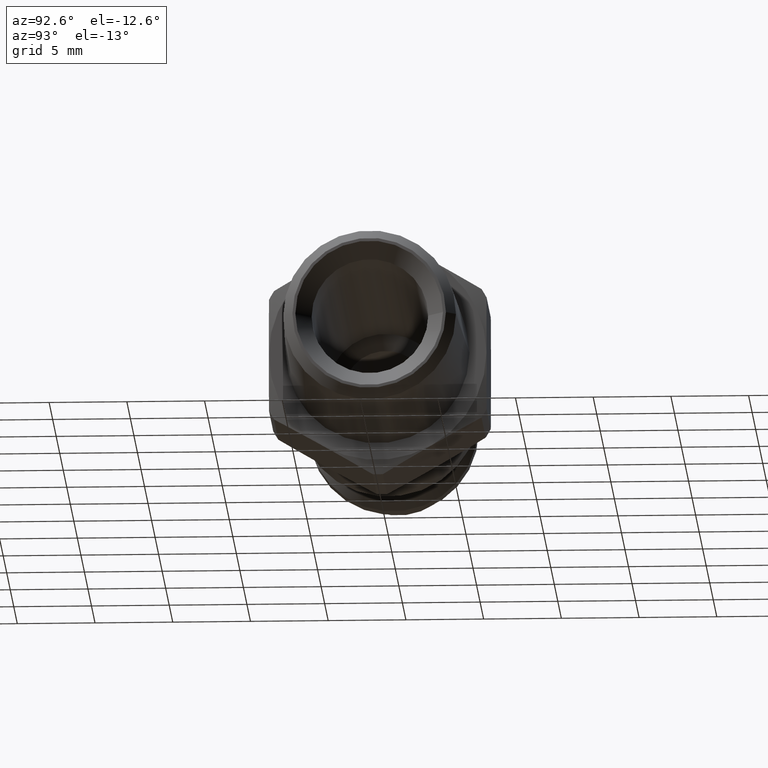
[diagram: clean part render]
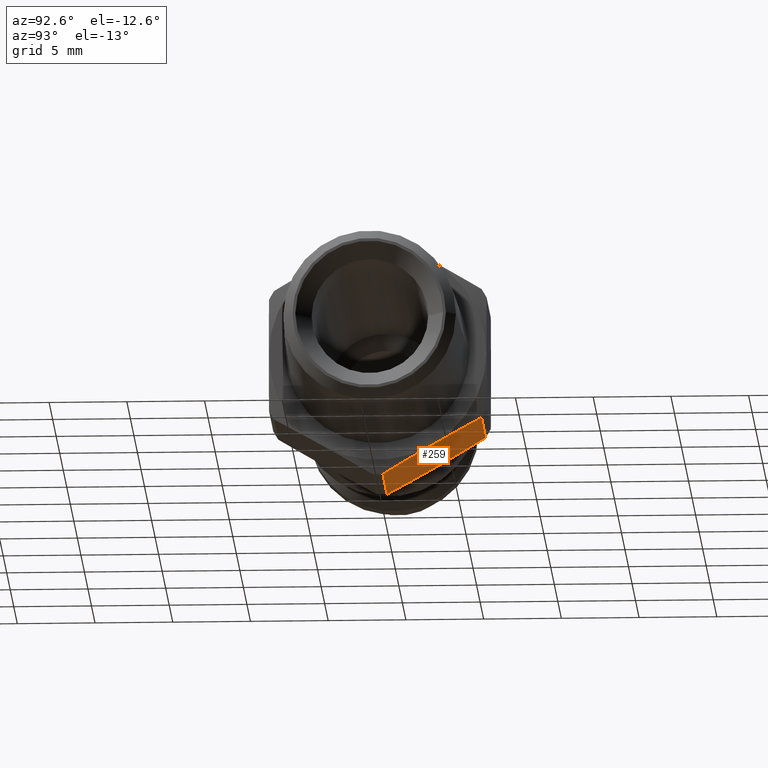
[diagram: same view with one face highlighted and labeled with its STEP entity id]
A machine part, auxiliary view. The second image highlights one B-rep face of the part: STEP entity #259.
In plain terms, the highlighted planar face has unit normal (0, -0.5, 0.866).
Its self-contained STEP definition (entity closure, byte-faithful):
#176=CARTESIAN_POINT('',(22.578428315368619,3.499999999999996,-6.062177826491075));
#177=DIRECTION('',(0.0,-0.499999999999999,0.866025403784439));
#178=DIRECTION('',(1.0,0.0,0.0));
#179=AXIS2_PLACEMENT_3D('',#176,#177,#178);
#180=PLANE('',#179);
#181=CARTESIAN_POINT('',(23.84115427318801,6.671356176779892,-4.231194484131024));
#182=VERTEX_POINT('',#181);
#183=CARTESIAN_POINT('',(23.600000000000001,3.499999999999996,-6.062177826491075));
#184=VERTEX_POINT('',#183);
#185=CARTESIAN_POINT('',(23.841154273188017,6.671356176779907,-4.231194484131015));
#186=CARTESIAN_POINT('',(23.600000000000001,4.989898874997301,-5.201984309946061));
#187=CARTESIAN_POINT('',(23.600000000000001,3.499999999999996,-6.062177826491075));
#195=(BOUNDED_CURVE()B_SPLINE_CURVE(2,(#185,#186,#187),.UNSPECIFIED.,.F.,.U.)B_SPLINE_CURVE_WITH_KNOTS((3,3),(0.0,0.367169590188577),.UNSPECIFIED.)CURVE()GEOMETRIC_REPRESENTATION_ITEM()RATIONAL_B_SPLINE_CURVE((1.0,1.031642241421743,1.0))REPRESENTATION_ITEM(''));
#196=EDGE_CURVE('',#182,#184,#195,.T.);
#197=ORIENTED_EDGE('',*,*,#196,.F.);
#198=CARTESIAN_POINT('',(29.758845726811984,6.671356176779892,-4.231194484131024));
#199=VERTEX_POINT('',#198);
#200=CARTESIAN_POINT('',(29.75884572681198,6.671356176779892,-4.231194484131024));
#201=DIRECTION('',(-1.0,0.0,0.0));
#202=VECTOR('',#201,5.91769145362397);
#203=LINE('',#200,#202);
#204=EDGE_CURVE('',#199,#182,#203,.T.);
#205=ORIENTED_EDGE('',*,*,#204,.F.);
#206=CARTESIAN_POINT('',(30.0,3.499999999999996,-6.062177826491075));
#207=VERTEX_POINT('',#206);
#208=CARTESIAN_POINT('',(30.0,3.499999999999996,-6.062177826491077));
#209=CARTESIAN_POINT('',(30.0,4.989898874997319,-5.201984309946052));
#210=CARTESIAN_POINT('',(29.758845726811984,6.67135617677994,-4.231194484130996));
#218=(BOUNDED_CURVE()B_SPLINE_CURVE(2,(#208,#209,#210),.UNSPECIFIED.,.F.,.U.)B_SPLINE_CURVE_WITH_KNOTS((3,3),(0.36716959018858,0.734339180377161),.UNSPECIFIED.)CURVE()GEOMETRIC_REPRESENTATION_ITEM()RATIONAL_B_SPLINE_CURVE((1.0,1.031642241421783,1.0))REPRESENTATION_ITEM(''));
#219=EDGE_CURVE('',#207,#199,#218,.T.);
#220=ORIENTED_EDGE('',*,*,#219,.F.);
#221=CARTESIAN_POINT('',(29.758845726811984,0.328643823220099,-7.893161168851127));
#222=VERTEX_POINT('',#221);
#223=CARTESIAN_POINT('',(29.758845726811984,0.328643823220052,-7.893161168851155));
#224=CARTESIAN_POINT('',(30.0,2.010101125002673,-6.922371343036099));
#225=CARTESIAN_POINT('',(30.0,3.499999999999996,-6.062177826491077));
#233=(BOUNDED_CURVE()B_SPLINE_CURVE(2,(#223,#224,#225),.UNSPECIFIED.,.F.,.U.)B_SPLINE_CURVE_WITH_KNOTS((3,3),(0.0,0.36716959018858),.UNSPECIFIED.)CURVE()GEOMETRIC_REPRESENTATION_ITEM()RATIONAL_B_SPLINE_CURVE((1.0,1.031642241421795,1.0))REPRESENTATION_ITEM(''));
#234=EDGE_CURVE('',#222,#207,#233,.T.);
#235=ORIENTED_EDGE('',*,*,#234,.F.);
#236=CARTESIAN_POINT('',(23.84115427318801,0.328643823220099,-7.893161168851127));
#237=VERTEX_POINT('',#236);
#238=CARTESIAN_POINT('',(23.84115427318801,0.328643823220099,-7.893161168851127));
#239=DIRECTION('',(1.0,0.0,0.0));
#240=VECTOR('',#239,5.91769145362397);
#241=LINE('',#238,#240);
#242=EDGE_CURVE('',#237,#222,#241,.T.);
#243=ORIENTED_EDGE('',*,*,#242,.F.);
#244=CARTESIAN_POINT('',(23.600000000000001,3.499999999999996,-6.062177826491075));
#245=CARTESIAN_POINT('',(23.600000000000001,2.010101125002689,-6.92237134303609));
#246=CARTESIAN_POINT('',(23.841154273188017,0.328643823220083,-7.893161168851137));
#254=(BOUNDED_CURVE()B_SPLINE_CURVE(2,(#244,#245,#246),.UNSPECIFIED.,.F.,.U.)B_SPLINE_CURVE_WITH_KNOTS((3,3),(0.367169590188577,0.734339180377154),.UNSPECIFIED.)CURVE()GEOMETRIC_REPRESENTATION_ITEM()RATIONAL_B_SPLINE_CURVE((1.0,1.031642241421732,1.0))REPRESENTATION_ITEM(''));
#255=EDGE_CURVE('',#184,#237,#254,.T.);
#256=ORIENTED_EDGE('',*,*,#255,.F.);
#257=EDGE_LOOP('',(#197,#205,#220,#235,#243,#256));
#258=FACE_OUTER_BOUND('',#257,.T.);
#259=ADVANCED_FACE('',(#258),#180,.F.);